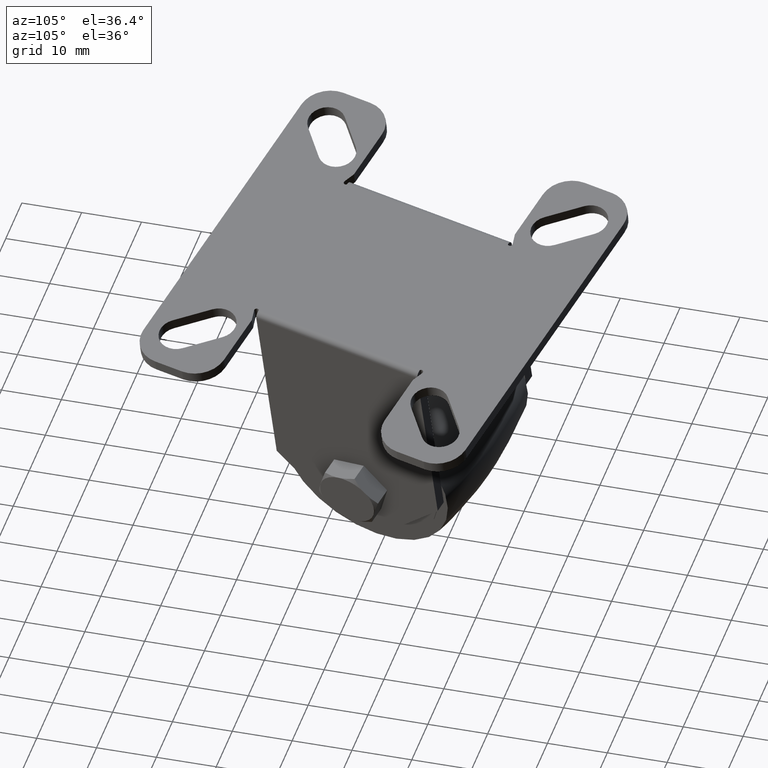
[diagram: clean part render]
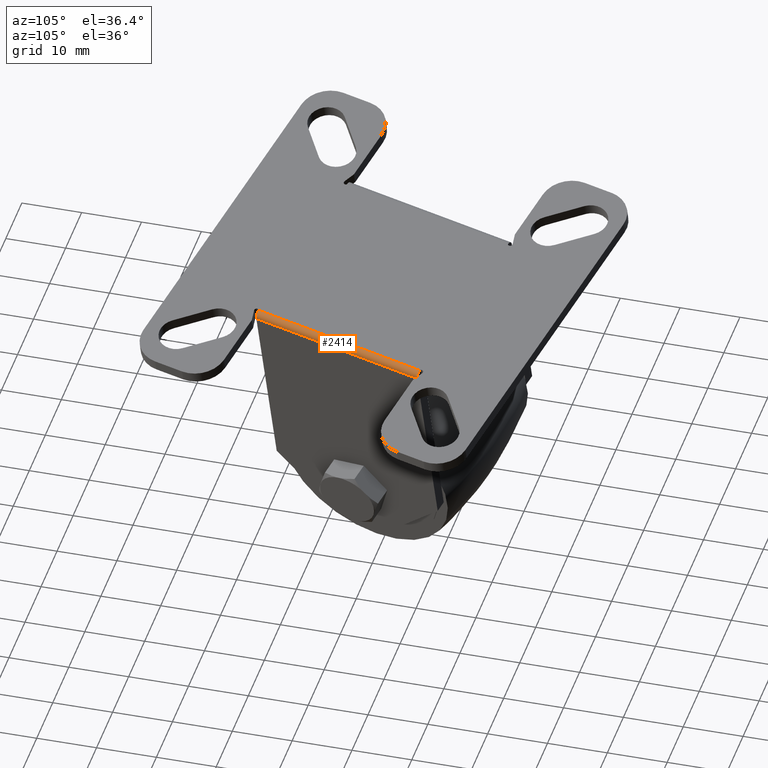
[diagram: same view with one face highlighted and labeled with its STEP entity id]
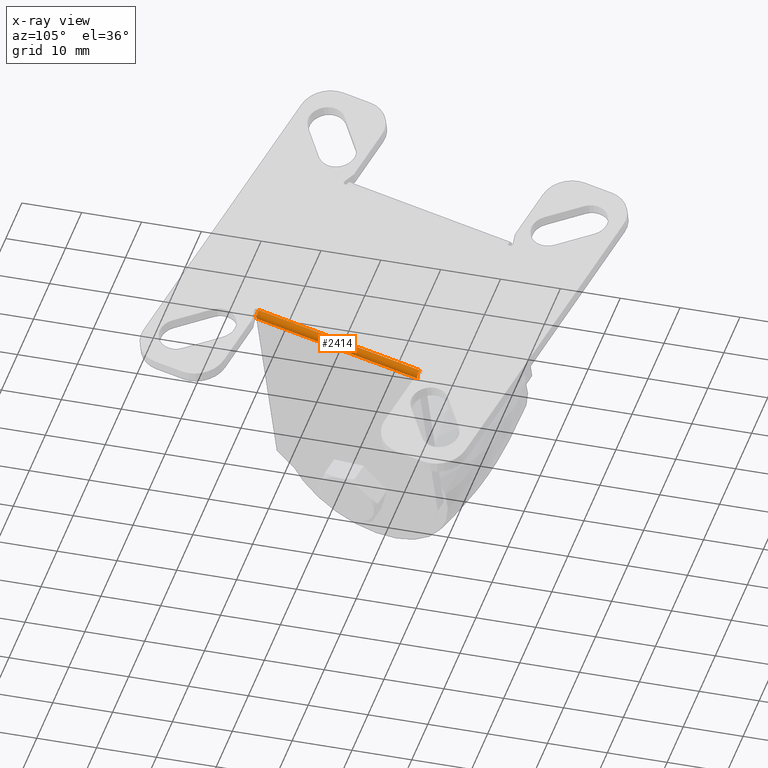
[diagram: x-ray of the same camera — body ghosted, the highlighted face saturated]
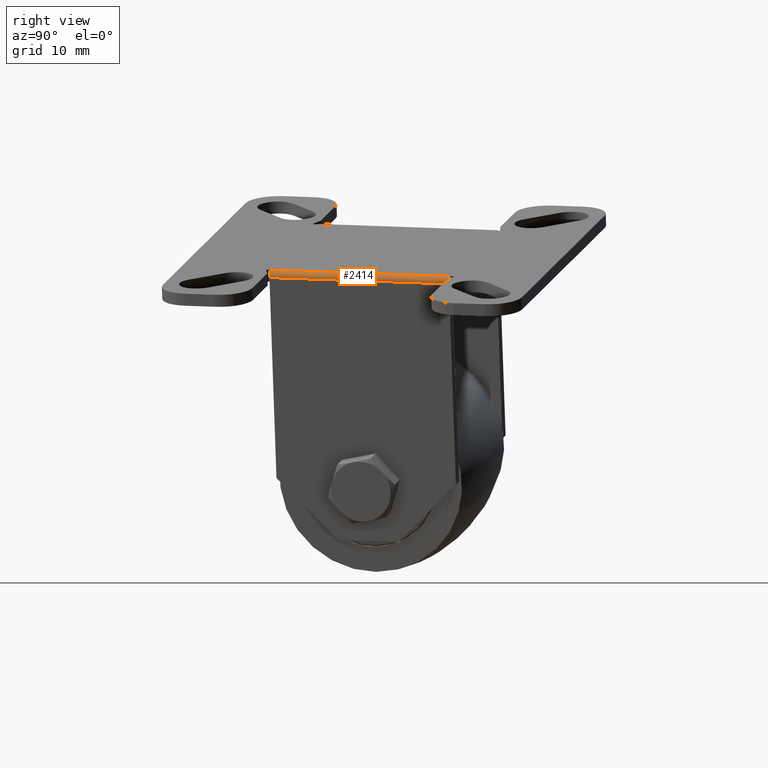
[diagram: same view with one face highlighted and labeled with its STEP entity id]
A machine part, auxiliary view. The second image highlights one B-rep face of the part: STEP entity #2414.
The next image is the same camera in x-ray: the body ghosted, the highlighted face saturated — about 0% of this face is hidden behind the body in this view.
A second angle (right view) of the same face is appended — the face is thin or edge-on in the first view.
In plain terms, the highlighted cylindrical surface (edge-blend (fillet) strip) has radius 1 mm, axis along (-0.2575, -0.9657, 0.0339).
Its self-contained STEP definition (entity closure, byte-faithful):
#111=LINE('',#4579,#259);
#121=LINE('',#4623,#269);
#259=VECTOR('',#3219,30.);
#269=VECTOR('',#3257,30.);
#681=FACE_OUTER_BOUND('',#880,.T.);
#880=EDGE_LOOP('',(#2052,#2053,#2054,#2055));
#1051=CIRCLE('',#2686,1.);
#1052=CIRCLE('',#2687,1.);
#1226=VERTEX_POINT('',#4529);
#1250=VERTEX_POINT('',#4577);
#1269=VERTEX_POINT('',#4619);
#1270=VERTEX_POINT('',#4621);
#1530=EDGE_CURVE('',#1250,#1226,#111,.F.);
#1550=EDGE_CURVE('',#1269,#1226,#1051,.T.);
#1551=EDGE_CURVE('',#1250,#1270,#1052,.F.);
#1552=EDGE_CURVE('',#1270,#1269,#121,.F.);
#2052=ORIENTED_EDGE('',*,*,#1550,.T.);
#2053=ORIENTED_EDGE('',*,*,#1530,.F.);
#2054=ORIENTED_EDGE('',*,*,#1551,.T.);
#2055=ORIENTED_EDGE('',*,*,#1552,.T.);
#2305=CYLINDRICAL_SURFACE('',#2685,1.);
#2414=ADVANCED_FACE('',(#681),#2305,.T.);
#2685=AXIS2_PLACEMENT_3D('',#4618,#3251,#3252);
#2686=AXIS2_PLACEMENT_3D('',#4620,#3253,#3254);
#2687=AXIS2_PLACEMENT_3D('',#4622,#3255,#3256);
#3219=DIRECTION('',(0.,-1.,0.));
#3251=DIRECTION('center_axis',(0.,-1.,0.));
#3252=DIRECTION('ref_axis',(1.,0.,0.));
#3253=DIRECTION('center_axis',(0.,-1.,0.));
#3254=DIRECTION('ref_axis',(0.,0.,1.));
#3255=DIRECTION('center_axis',(0.,-1.,0.));
#3256=DIRECTION('ref_axis',(0.,0.,1.));
#3257=DIRECTION('',(0.,-1.,0.));
#4529=CARTESIAN_POINT('',(14.5599088669,15.,2.));
#4577=CARTESIAN_POINT('',(14.5599088669,-15.,2.));
#4579=CARTESIAN_POINT('',(14.5599088669,-3.5527136788E-15,2.));
#4618=CARTESIAN_POINT('Origin',(14.5599088669,0.,1.));
#4619=CARTESIAN_POINT('',(15.5599088669,15.,1.));
#4620=CARTESIAN_POINT('Origin',(14.5599088669,15.,1.));
#4621=CARTESIAN_POINT('',(15.5599088669,-15.,1.));
#4622=CARTESIAN_POINT('Origin',(14.5599088669,-15.,1.));
#4623=CARTESIAN_POINT('',(15.5599088669,0.,1.));